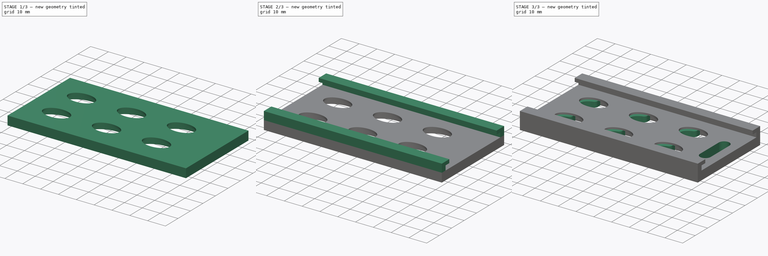
[diagram: build sequence overview — one tinted view per stage of 3, left to right]
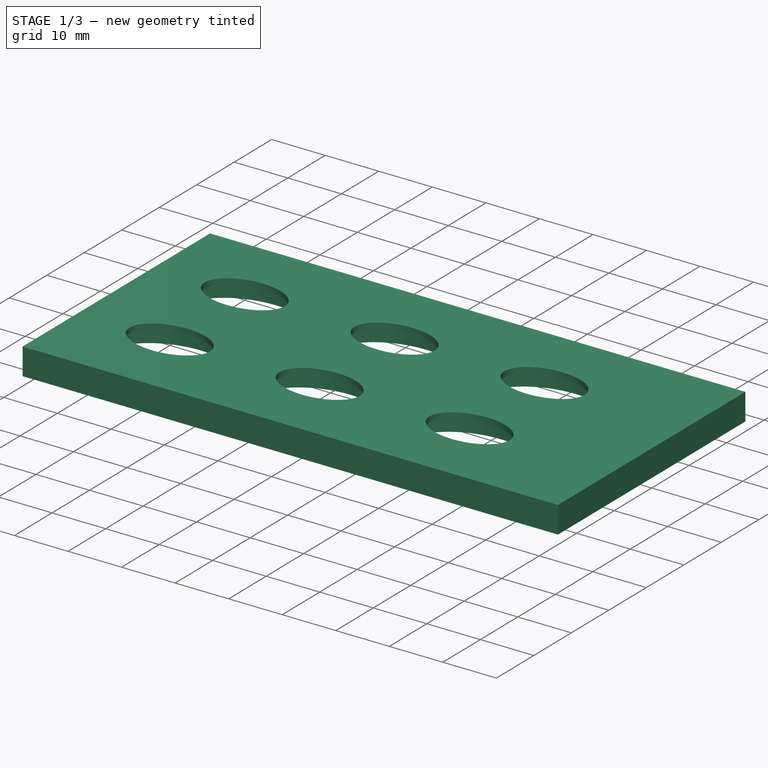
[diagram: stage 1 of 3 — iso view after this stage's code; geometry added in this stage tinted green]
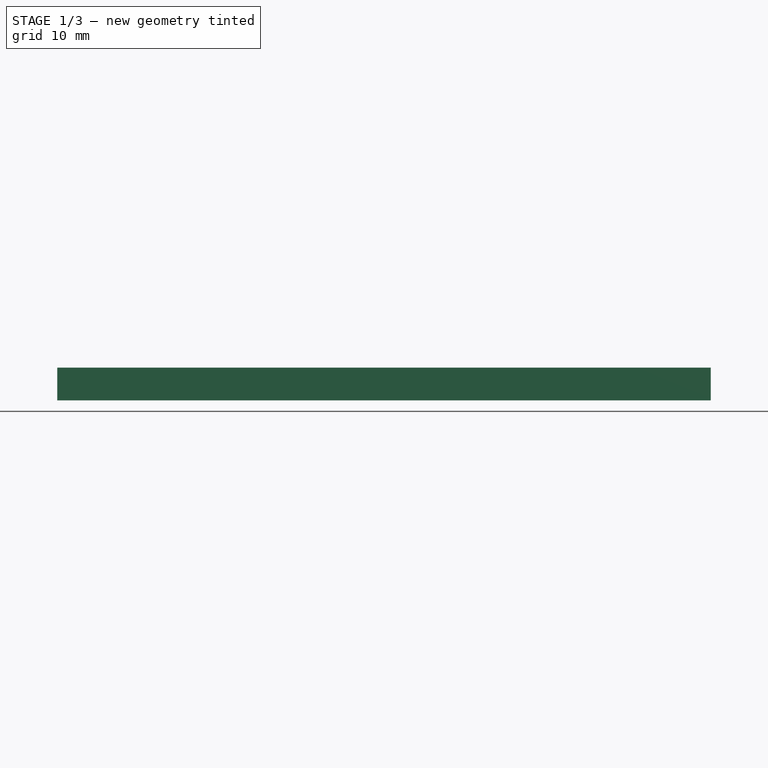
[diagram: stage 1 of 3 — front view after this stage's code; geometry added in this stage tinted green]
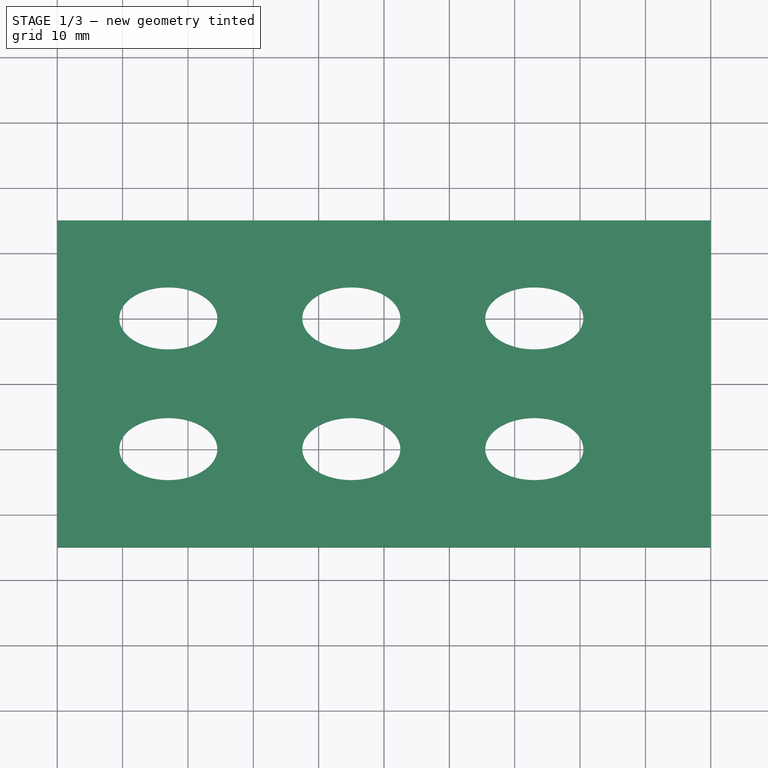
[diagram: stage 1 of 3 — top view after this stage's code; geometry added in this stage tinted green]
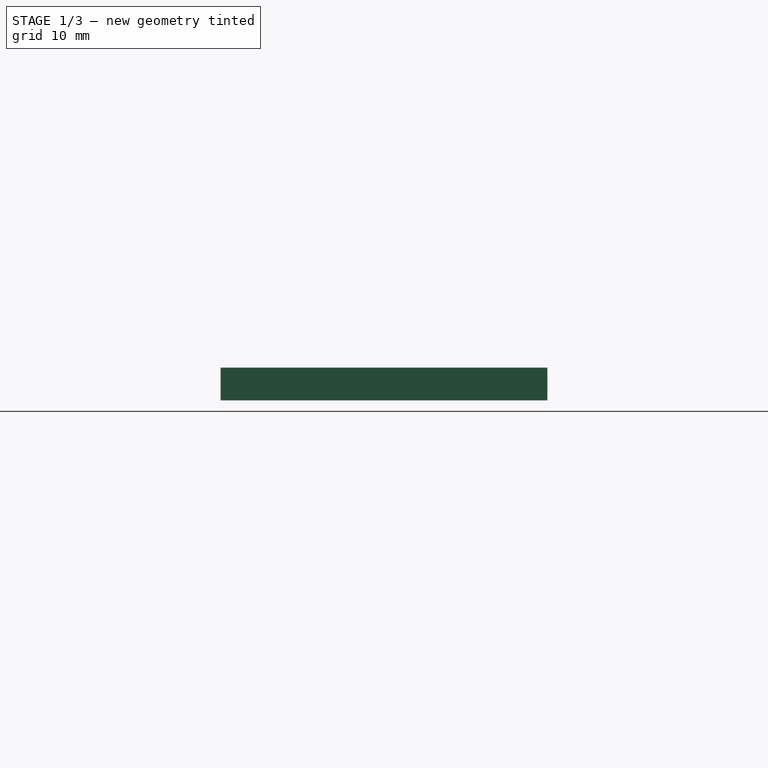
[diagram: stage 1 of 3 — right view after this stage's code; geometry added in this stage tinted green]
FCSTD DOCUMENT  (FreeCAD 0.21R33668 +26 (Git))
Label: bushing_jig_top2
License: All rights reserved
LicenseURL: https://en.wikipedia.org/wiki/All_rights_reserved
objects: Sketcher::SketchObject×6, PartDesign::Pad×3, PartDesign::Plane×3, PartDesign::Pocket×3, PartDesign::Mirrored×1, PartDesign::Fillet×1, PartDesign::Body×1
note: 25 computed .brp shape members not serialized (recipe doc carries the construction recipe); baked Part::Feature solids carry a one-line shape summary decoded from their .brp

FEATURE [Sketcher::SketchObject] Sketch
  FullyConstrained = true
  MapMode = 5
  Support = -> [XY_Plane]
  sketch-geometry (5):
    g0: LineSegment StartX=-50 StartY=-25 StartZ=0 EndX=-50 EndY=25 EndZ=0
    g1: LineSegment StartX=-50 StartY=25 StartZ=0 EndX=50 EndY=25 EndZ=0
    g2: LineSegment StartX=50 StartY=25 StartZ=0 EndX=50 EndY=-25 EndZ=0
    g3: LineSegment StartX=50 StartY=-25 StartZ=0 EndX=-50 EndY=-25 EndZ=0
    g4: GeomPoint X=0 Y=0 Z=0
  constraints (12):
    c: Coincident(g0,g1)
    c: Coincident(g1,g2)
    c: Coincident(g2,g3)
    c: Coincident(g3,g0)
    c: Horizontal(g1)
    c: Horizontal(g3)
    c: Vertical(g0)
    c: Vertical(g2)
    c: Symmetric(g1,g0,g4)
    c: Coincident(g4,g-1)
    c: DistanceX(g1,g1) = 100
    c: DistanceY(g2,g2) = 50
FEATURE [PartDesign::Pad] Pad
  Direction = (0,0,1)
  Length = 5
  Length2 = 10
  Profile = -> Sketch
  ReferenceAxis = -> Sketch [N_Axis]
  Reversed = true
  Type = 0
FEATURE [Sketcher::SketchObject] Sketch001
  FullyConstrained = true
  MapMode = 5
  Support = -> [XY_Plane]
  sketch-geometry (36):
    g0: Ellipse CenterX=-33 CenterY=10 CenterZ=0 NormalX=0 NormalY=0 NormalZ=1 MajorRadius=7.5 MinorRadius=4.75 AngleXU=0
    g1: LineSegment StartX=-25.5 StartY=10 StartZ=0 EndX=-40.5 EndY=10 EndZ=0
    g2: LineSegment StartX=-33 StartY=14.75 StartZ=0 EndX=-33 EndY=5.25 EndZ=0
    g3: GeomPoint X=-27.1959 Y=10 Z=0
    g4: GeomPoint X=-38.8041 Y=10 Z=0
    g5: Ellipse CenterX=-5 CenterY=10 CenterZ=0 NormalX=0 NormalY=0 NormalZ=1 MajorRadius=7.5 MinorRadius=4.75 AngleXU=0
    g6: LineSegment StartX=2.5 StartY=10 StartZ=0 EndX=-12.5 EndY=10 EndZ=0
    g7: LineSegment StartX=-5 StartY=14.75 StartZ=0 EndX=-5 EndY=5.25 EndZ=0
    g8: GeomPoint X=0.804093 Y=10 Z=0
    g9: GeomPoint X=-10.8041 Y=10 Z=0
    g10: LineSegment StartX=-33 StartY=10 StartZ=0 EndX=-5 EndY=10 EndZ=0
    g11: Ellipse CenterX=23 CenterY=10 CenterZ=0 NormalX=0 NormalY=0 NormalZ=1 MajorRadius=7.5 MinorRadius=4.75 AngleXU=0
    g12: LineSegment StartX=30.5 StartY=10 StartZ=0 EndX=15.5 EndY=10 EndZ=0
    g13: LineSegment StartX=23 StartY=14.75 StartZ=0 EndX=23 EndY=5.25 EndZ=0
    g14: GeomPoint X=28.8041 Y=10 Z=0
    g15: GeomPoint X=17.1959 Y=10 Z=0
    g16: LineSegment StartX=-5 StartY=10 StartZ=0 EndX=23 EndY=10 EndZ=0
    g17: Ellipse CenterX=-33 CenterY=-10 CenterZ=0 NormalX=0 NormalY=0 NormalZ=1 MajorRadius=7.5 MinorRadius=4.75 AngleXU=0
    g18: LineSegment StartX=-25.5 StartY=-10 StartZ=0 EndX=-40.5 EndY=-10 EndZ=0
    g19: LineSegment StartX=-33 StartY=-5.25 StartZ=0 EndX=-33 EndY=-14.75 EndZ=0
    g20: GeomPoint X=-27.1959 Y=-10 Z=0
    g21: GeomPoint X=-38.8041 Y=-10 Z=0
    g22: LineSegment StartX=-33 StartY=10 StartZ=0 EndX=-33 EndY=-10 EndZ=0
    g23: Ellipse CenterX=-5 CenterY=-10 CenterZ=0 NormalX=0 NormalY=0 NormalZ=1 MajorRadius=7.5 MinorRadius=4.75 AngleXU=0
    g24: LineSegment StartX=2.5 StartY=-10 StartZ=0 EndX=-12.5 EndY=-10 EndZ=0
    g25: LineSegment StartX=-5 StartY=-5.25 StartZ=0 EndX=-5 EndY=-14.75 EndZ=0
    g26: GeomPoint X=0.804093 Y=-10 Z=0
    g27: GeomPoint X=-10.8041 Y=-10 Z=0
    g28: LineSegment StartX=-33 StartY=-10 StartZ=0 EndX=-5 EndY=-10 EndZ=0
    g29: Ellipse CenterX=23 CenterY=-10 CenterZ=0 NormalX=0 NormalY=0 NormalZ=1 MajorRadius=7.5 MinorRadius=4.75 AngleXU=0
    g30: LineSegment StartX=30.5 StartY=-10 StartZ=0 EndX=15.5 EndY=-10 EndZ=0
    g31: LineSegment StartX=23 StartY=-5.25 StartZ=0 EndX=23 EndY=-14.75 EndZ=0
    g32: GeomPoint X=28.8041 Y=-10 Z=0
    g33: GeomPoint X=17.1959 Y=-10 Z=0
    g34: LineSegment StartX=-5 StartY=-10 StartZ=0 EndX=23 EndY=-10 EndZ=0
    g35: GeomPoint X=-5 Y=0 Z=0
  constraints (47):
    c: InternalAlignment(g1-g4 -> g0) x4
    c: Horizontal(g1)
    c: DistanceY(g2,g2) = 9.5
    c: DistanceX(g1,g1) = 15
    c: InternalAlignment(g6-g9 -> g5) x4
    c: Horizontal(g6)
    c: Equal(g2,g7) = 9.5
    c: Equal(g1,g6) = 13
    c: Coincident(g0,g10)
    c: Coincident(g5,g10)
    c: Distance(g10) = 28
    c: Angle(g10) = 0
    c: InternalAlignment(g12-g15 -> g11) x4
    c: Horizontal(g12)
    c: Equal(g2,g13) = 9.5
    c: Equal(g1,g12) = 13
    c: Coincident(g5,g16)
    c: Coincident(g11,g16)
    c: Equal(g10,g16)
    c: Parallel(g16,g10)
    c: InternalAlignment(g18-g21 -> g17) x4
    c: Horizontal(g18)
    c: Equal(g2,g19) = 9.5
    c: Equal(g1,g18) = 13
    c: Coincident(g0,g22)
    c: Coincident(g17,g22)
    c: Distance(g22) = 20
    c: Perpendicular(g22,g10)
    c: InternalAlignment(g24-g27 -> g23) x4
    c: Horizontal(g24)
    c: Equal(g2,g25) = 9.5
    c: Equal(g1,g24) = 13
    c: Coincident(g17,g28)
    c: Coincident(g23,g28)
    c: Equal(g10,g28)
    c: Parallel(g28,g10)
    c: InternalAlignment(g30-g33 -> g29) x4
    c: Horizontal(g30)
    c: Equal(g2,g31) = 9.5
    c: Equal(g1,g30) = 13
    c: Coincident(g23,g34)
    c: Coincident(g29,g34)
    c: Equal(g10,g34)
    c: Parallel(g34,g10)
    c: PointOnObject(g35,g-1)
    c: Symmetric(g5,g23,g35)
    c: DistanceX(g5,g-1) = 5
FEATURE [PartDesign::Plane] DatumPlane
  AttachmentOffset = pos=(0,0,-5) rot=(0,0,1;0rad)
  Length = 60
  MapMode = 5
  Placement = pos=(0,0,-5) rot=(0,0,1;0rad)
  ResizeMode = 0
  Support = -> [XY_Plane]
  Width = 60
FEATURE [Sketcher::SketchObject] Sketch003
  FullyConstrained = true
  MapMode = 5
  Placement = pos=(0,0,-5) rot=(0,0,1;0rad)
  Support = -> [DatumPlane]
  sketch-geometry (36):
    g0: Ellipse CenterX=-33 CenterY=10 CenterZ=0 NormalX=0 NormalY=0 NormalZ=1 MajorRadius=11.5 MinorRadius=8.25 AngleXU=0
    g1: LineSegment StartX=-21.5 StartY=10 StartZ=0 EndX=-44.5 EndY=10 EndZ=0
    g2: LineSegment StartX=-33 StartY=18.25 StartZ=0 EndX=-33 EndY=1.75 EndZ=0
    g3: GeomPoint X=-24.9883 Y=10 Z=0
    g4: GeomPoint X=-41.0117 Y=10 Z=0
    g5: Ellipse CenterX=-5 CenterY=10 CenterZ=0 NormalX=0 NormalY=0 NormalZ=1 MajorRadius=11.5 MinorRadius=8.25 AngleXU=0
    g6: LineSegment StartX=6.5 StartY=10 StartZ=0 EndX=-16.5 EndY=10 EndZ=0
    g7: LineSegment StartX=-5 StartY=18.25 StartZ=0 EndX=-5 EndY=1.75 EndZ=0
    g8: GeomPoint X=3.01171 Y=10 Z=0
    g9: GeomPoint X=-13.0117 Y=10 Z=0
    g10: LineSegment StartX=-33 StartY=10 StartZ=0 EndX=-5 EndY=10 EndZ=0
    g11: Ellipse CenterX=23 CenterY=10 CenterZ=0 NormalX=0 NormalY=0 NormalZ=1 MajorRadius=11.5 MinorRadius=8.25 AngleXU=0
    g12: LineSegment StartX=34.5 StartY=10 StartZ=0 EndX=11.5 EndY=10 EndZ=0
    g13: LineSegment StartX=23 StartY=18.25 StartZ=0 EndX=23 EndY=1.75 EndZ=0
    g14: GeomPoint X=31.0117 Y=10 Z=0
    g15: GeomPoint X=14.9883 Y=10 Z=0
    g16: LineSegment StartX=-5 StartY=10 StartZ=0 EndX=23 EndY=10 EndZ=0
    g17: Ellipse CenterX=-33 CenterY=-10 CenterZ=0 NormalX=0 NormalY=0 NormalZ=1 MajorRadius=11.5 MinorRadius=8.25 AngleXU=0
    g18: LineSegment StartX=-21.5 StartY=-10 StartZ=0 EndX=-44.5 EndY=-10 EndZ=0
    g19: LineSegment StartX=-33 StartY=-1.75 StartZ=0 EndX=-33 EndY=-18.25 EndZ=0
    g20: GeomPoint X=-24.9883 Y=-10 Z=0
    g21: GeomPoint X=-41.0117 Y=-10 Z=0
    g22: LineSegment StartX=-33 StartY=10 StartZ=0 EndX=-33 EndY=-10 EndZ=0
    g23: Ellipse CenterX=-5 CenterY=-10 CenterZ=0 NormalX=0 NormalY=0 NormalZ=1 MajorRadius=11.5 MinorRadius=8.25 AngleXU=0
    g24: LineSegment StartX=6.5 StartY=-10 StartZ=0 EndX=-16.5 EndY=-10 EndZ=0
    g25: LineSegment StartX=-5 StartY=-1.75 StartZ=0 EndX=-5 EndY=-18.25 EndZ=0
    g26: GeomPoint X=3.01171 Y=-10 Z=0
    g27: GeomPoint X=-13.0117 Y=-10 Z=0
    g28: LineSegment StartX=-33 StartY=-10 StartZ=0 EndX=-5 EndY=-10 EndZ=0
    g29: Ellipse CenterX=23 CenterY=-10 CenterZ=0 NormalX=0 NormalY=0 NormalZ=1 MajorRadius=11.5 MinorRadius=8.25 AngleXU=0
    g30: LineSegment StartX=34.5 StartY=-10 StartZ=0 EndX=11.5 EndY=-10 EndZ=0
    g31: LineSegment StartX=23 StartY=-1.75 StartZ=0 EndX=23 EndY=-18.25 EndZ=0
    g32: GeomPoint X=31.0117 Y=-10 Z=0
    g33: GeomPoint X=14.9883 Y=-10 Z=0
    g34: LineSegment StartX=-5 StartY=-10 StartZ=0 EndX=23 EndY=-10 EndZ=0
    g35: GeomPoint X=-5 Y=0 Z=0
  constraints (47):
    c: InternalAlignment(g1-g4 -> g0) x4
    c: Horizontal(g1)
    c: DistanceX(g1,g1) = 23
    c: DistanceY(g2,g2) = 16.5
    c: InternalAlignment(g6-g9 -> g5) x4
    c: Horizontal(g6)
    c: Equal(g1,g6) = 21
    c: Equal(g2,g7) = 16.5
    c: Coincident(g0,g10)
    c: Coincident(g5,g10)
    c: Distance(g10) = 28
    c: Angle(g10) = 0
    c: InternalAlignment(g12-g15 -> g11) x4
    c: Horizontal(g12)
    c: Equal(g1,g12) = 21
    c: Equal(g2,g13) = 16.5
    c: Coincident(g5,g16)
    c: Coincident(g11,g16)
    c: Equal(g10,g16)
    c: Parallel(g16,g10)
    c: InternalAlignment(g18-g21 -> g17) x4
    c: Horizontal(g18)
    c: Equal(g1,g18) = 21
    c: Equal(g2,g19) = 16.5
    c: Coincident(g0,g22)
    c: Coincident(g17,g22)
    c: Distance(g22) = 20
    c: Perpendicular(g22,g10)
    c: InternalAlignment(g24-g27 -> g23) x4
    c: Horizontal(g24)
    c: Equal(g1,g24) = 21
    c: Equal(g2,g25) = 16.5
    c: Coincident(g17,g28)
    c: Coincident(g23,g28)
    c: Equal(g10,g28)
    c: Parallel(g28,g10)
    c: InternalAlignment(g30-g33 -> g29) x4
    c: Horizontal(g30)
    c: Equal(g1,g30) = 21
    c: Equal(g2,g31) = 16.5
    c: Coincident(g23,g34)
    c: Coincident(g29,g34)
    c: Equal(g10,g34)
    c: Parallel(g34,g10)
    c: PointOnObject(g35,g-1)
    c: Symmetric(g5,g23,g35)
    c: DistanceX(g5,g-1) = 5
FEATURE [Sketcher::SketchObject] Sketch005
  FullyConstrained = true
  MapMode = 5
  Placement = pos=(0,0,0) rot=(0.57735,0.57735,0.57735;2.0944rad)
  Support = -> [YZ_Plane]
  sketch-geometry (6):
    g0: LineSegment StartX=25 StartY=0 StartZ=0 EndX=25 EndY=4.6 EndZ=0
    g1: LineSegment StartX=25 StartY=4.6 StartZ=0 EndX=19 EndY=4.6 EndZ=0
    g2: LineSegment StartX=19 StartY=4.6 StartZ=0 EndX=19 EndY=2.6 EndZ=0
    g3: LineSegment StartX=19 StartY=2.6 StartZ=0 EndX=22 EndY=2.6 EndZ=0
    g4: LineSegment StartX=22 StartY=2.6 StartZ=0 EndX=22 EndY=0 EndZ=0
    g5: LineSegment StartX=22 StartY=0 StartZ=0 EndX=25 EndY=0 EndZ=0
  constraints (19):
    c: PointOnObject(g0,g-1)
    c: Vertical(g0)
    c: Horizontal(g1)
    c: Coincident(g2,g1)
    c: Vertical(g2)
    c: Horizontal(g3)
    c: PointOnObject(g4,g-1)
    c: Coincident(g5,g4)
    c: Coincident(g5,g0)
    c: Vertical(g4)
    c: Coincident(g3,g4)
    c: Coincident(g1,g0)
    c: DistanceY(g2,g2) = 2
    c: Coincident(g3,g2)
    c: DistanceX(g5,g5) = 3
    c: DistanceX(g1,g1) = 6
    c: DistanceX(g-1,g0) = 25
    c: DistanceY(g4,g4) = 2.6
    c: DistanceY(g0,g0) = 4.6
FEATURE [PartDesign::Pocket] Pocket
  BaseFeature = -> Pad
  Direction = (0,0,-1)
  Length = 16
  Length2 = 5
  Profile = -> Sketch001
  ReferenceAxis = -> Sketch001 [N_Axis]
  Type = 0
FEATURE [PartDesign::Pocket] Pocket001
  BaseFeature = -> Pocket
  Direction = (0,0,-1)
  Length = 4
  Length2 = 5
  Profile = -> Sketch003
  ReferenceAxis = -> Sketch003 [N_Axis]
  Reversed = true
  Type = 0
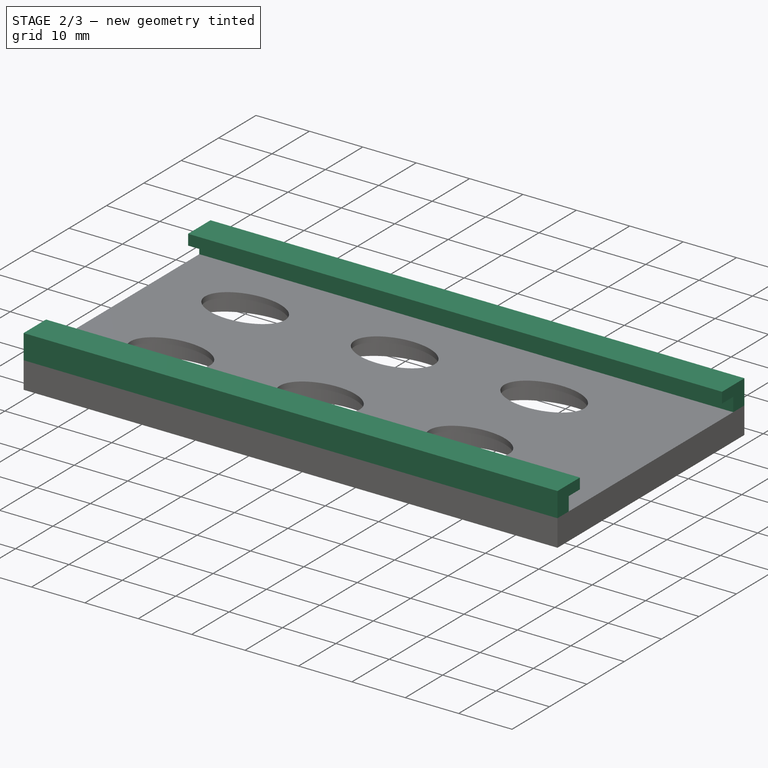
[diagram: stage 2 of 3 — iso view after this stage's code; geometry added in this stage tinted green]
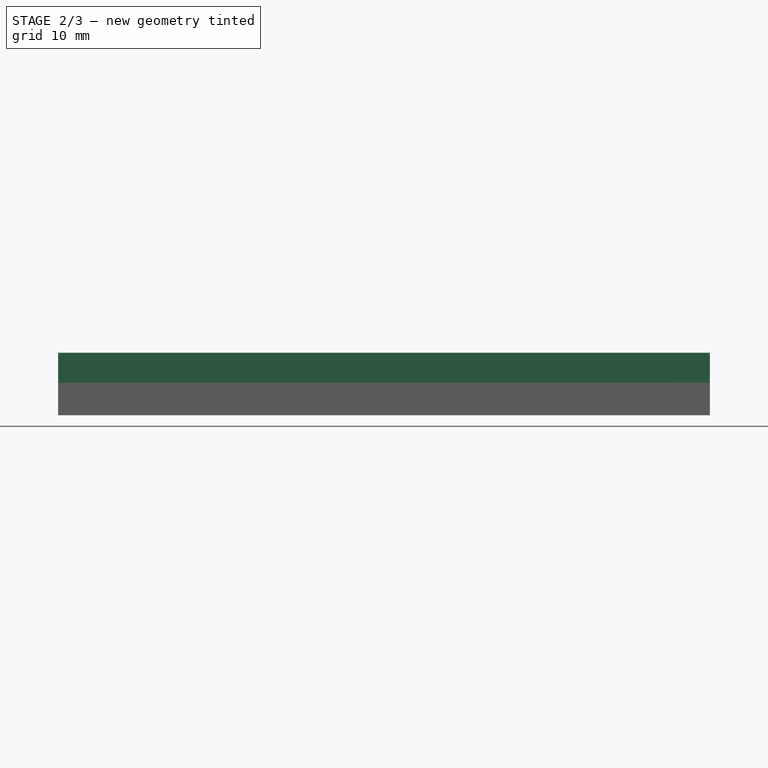
[diagram: stage 2 of 3 — front view after this stage's code; geometry added in this stage tinted green]
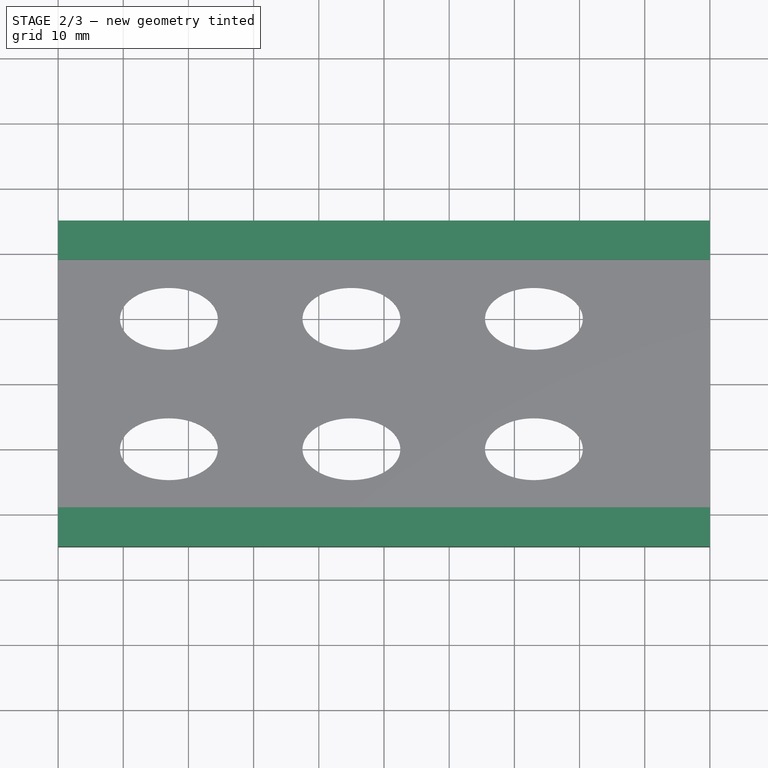
[diagram: stage 2 of 3 — top view after this stage's code; geometry added in this stage tinted green]
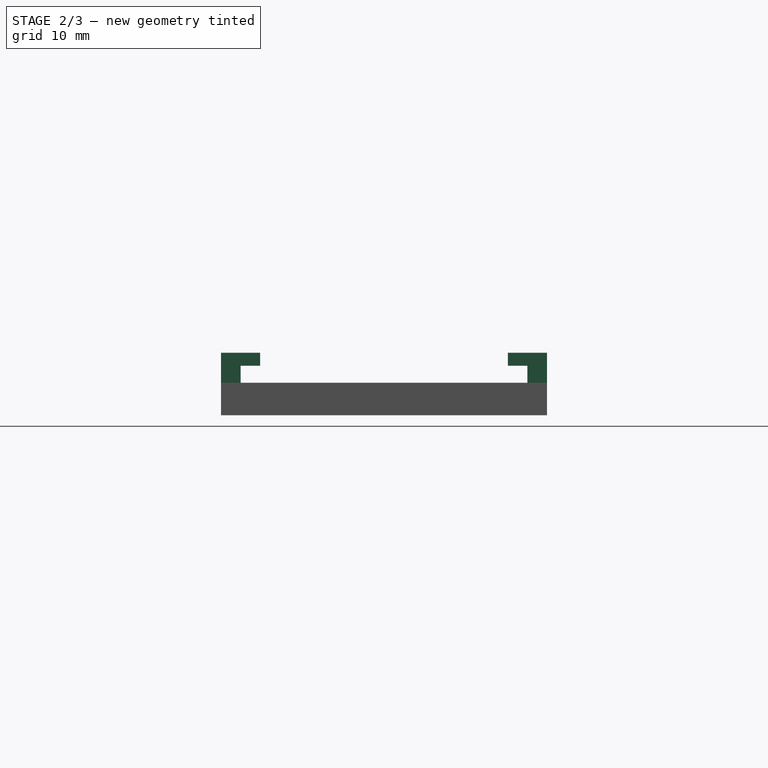
[diagram: stage 2 of 3 — right view after this stage's code; geometry added in this stage tinted green]
FEATURE [PartDesign::Pad] Pad001
  BaseFeature = -> Pocket001
  Direction = (1,-2e-16,3e-16)
  Length = 100
  Length2 = 10
  Midplane = true
  Profile = -> Sketch005
  ReferenceAxis = -> Sketch005 [N_Axis]
  Type = 0
FEATURE [PartDesign::Mirrored] Mirrored
  BaseFeature = -> Pad001
  MirrorPlane = -> Sketch005 [V_Axis]
  Originals = -> [Pad001]
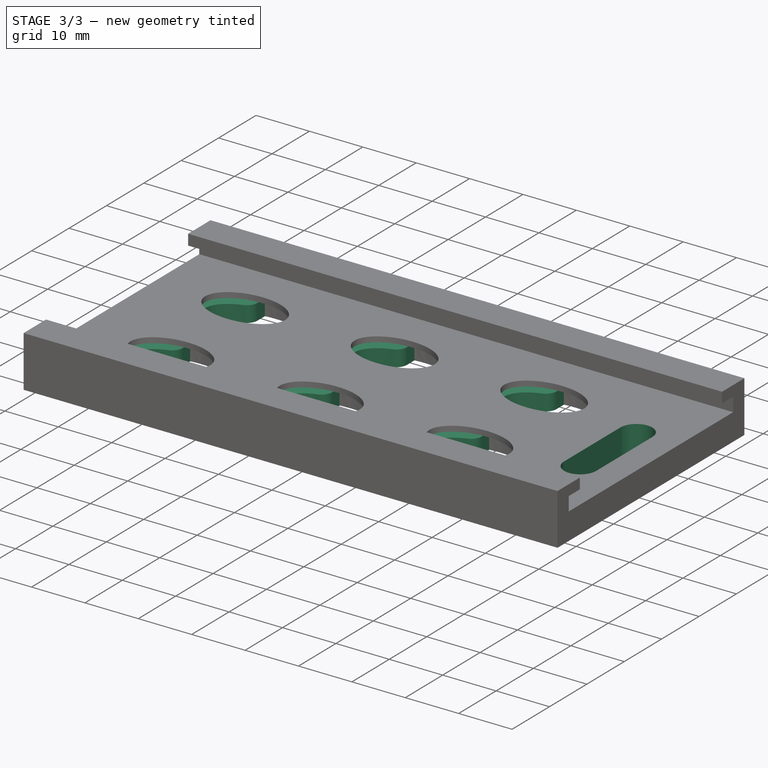
[diagram: stage 3 of 3 — iso view after this stage's code; geometry added in this stage tinted green]
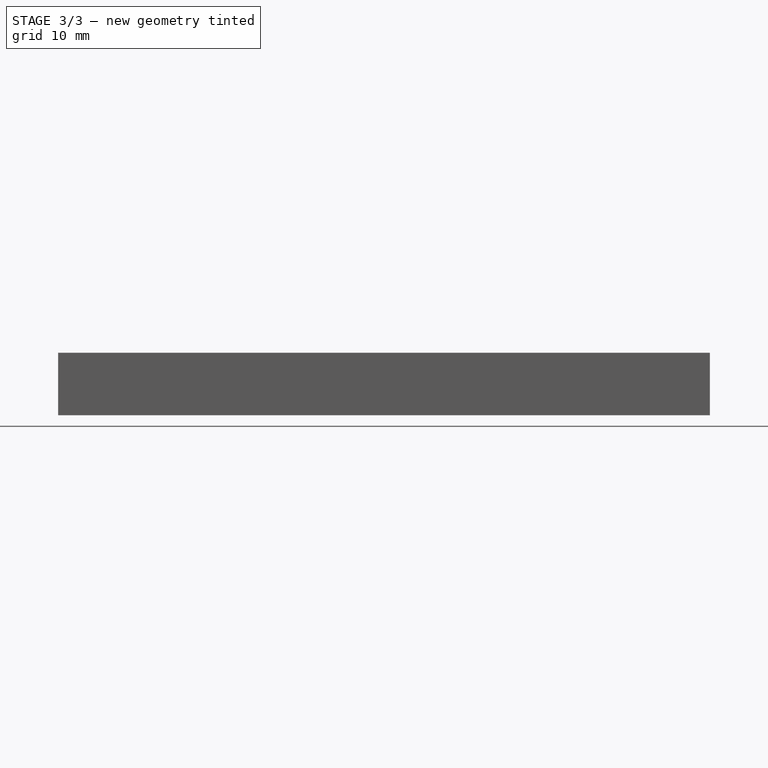
[diagram: stage 3 of 3 — front view after this stage's code; geometry added in this stage tinted green]
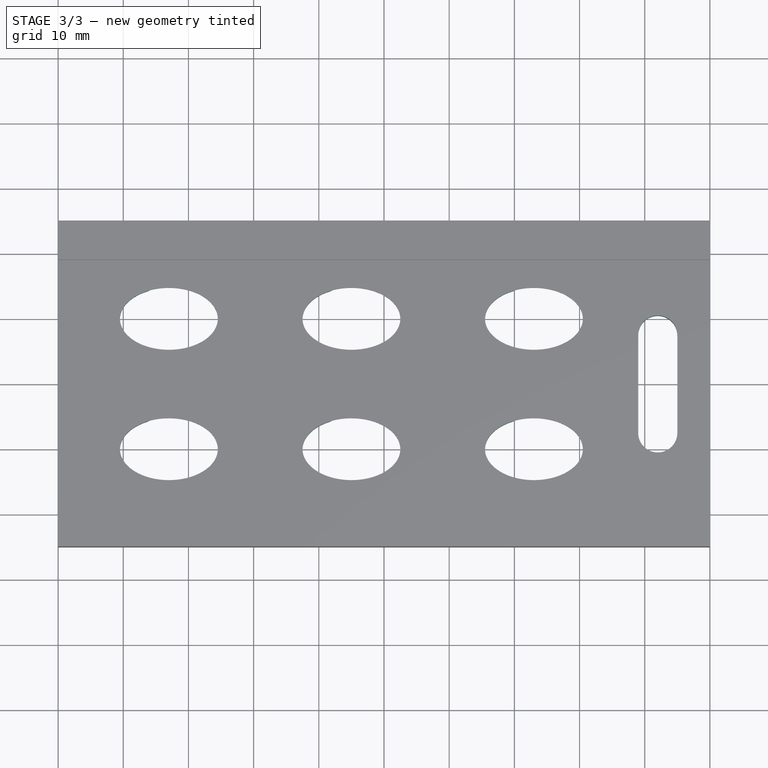
[diagram: stage 3 of 3 — top view after this stage's code; geometry added in this stage tinted green]
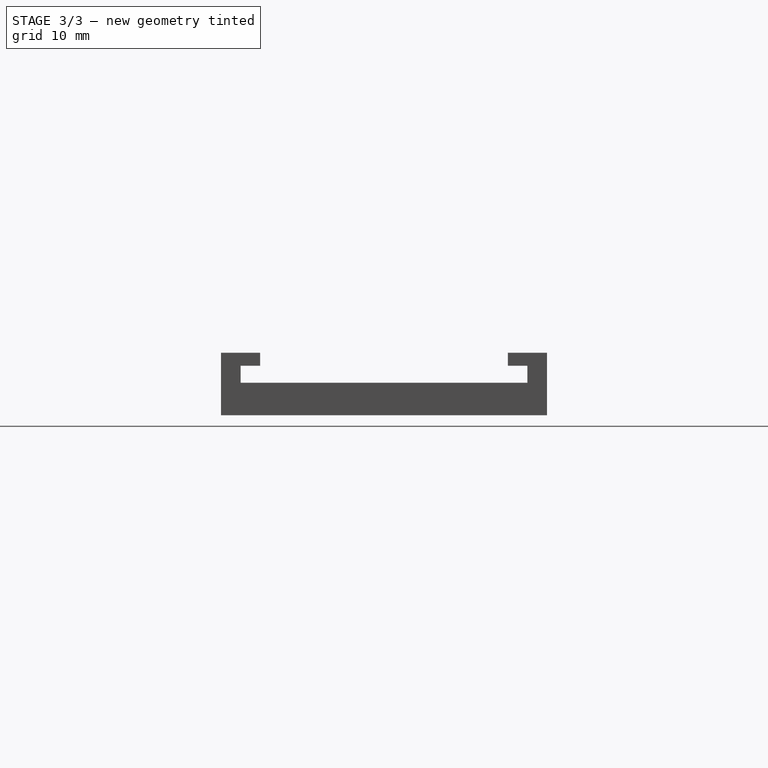
[diagram: stage 3 of 3 — right view after this stage's code; geometry added in this stage tinted green]
FEATURE [Sketcher::SketchObject] Sketch006
  FullyConstrained = true
  MapMode = 5
  Support = -> [XY_Plane]
  sketch-geometry (5):
    g0: ArcOfCircle CenterX=42 CenterY=7.5 CenterZ=0 NormalX=0 NormalY=0 NormalZ=1 AngleXU=0 Radius=3 StartAngle=1e-16 EndAngle=3.14159
    g1: ArcOfCircle CenterX=42 CenterY=-7.5 CenterZ=0 NormalX=0 NormalY=0 NormalZ=1 AngleXU=0 Radius=3 StartAngle=3.14159 EndAngle=6.28319
    g2: LineSegment StartX=39 StartY=7.5 StartZ=0 EndX=39 EndY=-7.5 EndZ=0
    g3: LineSegment StartX=45 StartY=-7.5 StartZ=0 EndX=45 EndY=7.5 EndZ=0
    g4: GeomPoint X=42 Y=0 Z=0
  constraints (11):
    c: Tangent(g0,g2) = -1.5708
    c: Tangent(g2,g1) = -1.5708
    c: Tangent(g1,g3) = -1.5708
    c: Tangent(g3,g0) = -1.5708
    c: Equal(g0,g1)
    c: Vertical(g2)
    c: DistanceY(g1,g0) = 15
    c: Radius(g0) = 3
    c: DistanceX(g-1,g1) = 42
    c: PointOnObject(g4,g-1)
    c: Symmetric(g0,g1,g4)
FEATURE [PartDesign::Pocket] Pocket002
  BaseFeature = -> Mirrored
  Direction = (0,0,-1)
  Length = 5
  Length2 = 5
  Profile = -> Sketch006
  ReferenceAxis = -> Sketch006 [N_Axis]
  Type = 1
FEATURE [PartDesign::Plane] DatumPlane001
  AttachmentOffset = pos=(0,0,-2) rot=(0,0,1;0rad)
  Length = 60
  MapMode = 5
  Placement = pos=(0,0,-2) rot=(0,0,1;0rad)
  ResizeMode = 0
  Support = -> [XY_Plane]
  Width = 60
FEATURE [Sketcher::SketchObject] Sketch007
  FullyConstrained = true
  MapMode = 5
  Placement = pos=(0,0,-2) rot=(0,0,1;0rad)
  Support = -> [DatumPlane001]
  sketch-geometry (78):
    g0: ArcOfEllipse CenterX=-33 CenterY=10 CenterZ=0 NormalX=0 NormalY=0 NormalZ=1 MajorRadius=11.5 MinorRadius=8.25 AngleXU=0 StartAngle=1.7456 EndAngle=4.53759
    g1: LineSegment StartX=-21.5 StartY=10 StartZ=0 EndX=-44.5 EndY=10 EndZ=0
    g2: LineSegment StartX=-33 StartY=18.25 StartZ=0 EndX=-33 EndY=1.75 EndZ=0
    g3: GeomPoint X=-24.9883 Y=10 Z=0
    g4: GeomPoint X=-41.0117 Y=10 Z=0
    g5: ArcOfEllipse CenterX=-33 CenterY=10 CenterZ=0 NormalX=0 NormalY=0 NormalZ=1 MajorRadius=7.5 MinorRadius=4.75 AngleXU=0 StartAngle=1.84073 EndAngle=4.44246
    g6: LineSegment StartX=-25.5 StartY=10 StartZ=0 EndX=-40.5 EndY=10 EndZ=0
    g7: LineSegment StartX=-33 StartY=14.75 StartZ=0 EndX=-33 EndY=5.25 EndZ=0
    g8: GeomPoint X=-27.1959 Y=10 Z=0
    g9: GeomPoint X=-38.8041 Y=10 Z=0
    g10: LineSegment StartX=-35 StartY=18.1243 StartZ=0 EndX=-35 EndY=14.578 EndZ=0
    g11: LineSegment StartX=-35 StartY=5.422 StartZ=0 EndX=-35 EndY=1.87572 EndZ=0
    g12: ArcOfEllipse CenterX=-5 CenterY=10 CenterZ=0 NormalX=0 NormalY=0 NormalZ=1 MajorRadius=11.5 MinorRadius=8.25 AngleXU=0 StartAngle=1.7456 EndAngle=4.53759
    g13: LineSegment StartX=6.5 StartY=10 StartZ=0 EndX=-16.5 EndY=10 EndZ=0
    g14: LineSegment StartX=-5 StartY=18.25 StartZ=0 EndX=-5 EndY=1.75 EndZ=0
    g15: GeomPoint X=3.01171 Y=10 Z=0
    g16: GeomPoint X=-13.0117 Y=10 Z=0
    g17: ArcOfEllipse CenterX=-5 CenterY=10 CenterZ=0 NormalX=0 NormalY=0 NormalZ=1 MajorRadius=7.5 MinorRadius=4.75 AngleXU=-3e-16 StartAngle=1.84073 EndAngle=4.44246
    g18: LineSegment StartX=2.5 StartY=10 StartZ=0 EndX=-12.5 EndY=10 EndZ=0
    g19: LineSegment StartX=-5 StartY=14.75 StartZ=0 EndX=-5 EndY=5.25 EndZ=0
    g20: GeomPoint X=0.804093 Y=10 Z=0
    g21: GeomPoint X=-10.8041 Y=10 Z=0
    g22: LineSegment StartX=-7 StartY=18.1243 StartZ=0 EndX=-7 EndY=14.578 EndZ=0
    g23: LineSegment StartX=-7 StartY=5.422 StartZ=0 EndX=-7 EndY=1.87572 EndZ=0
    g24: LineSegment StartX=-35 StartY=18.1243 StartZ=0 EndX=-7 EndY=18.1243 EndZ=0
    g25: ArcOfEllipse CenterX=23 CenterY=10 CenterZ=0 NormalX=0 NormalY=0 NormalZ=1 MajorRadius=11.5 MinorRadius=8.25 AngleXU=0 StartAngle=1.7456 EndAngle=4.53759
    g26: LineSegment StartX=34.5 StartY=10 StartZ=0 EndX=11.5 EndY=10 EndZ=0
    g27: LineSegment StartX=23 StartY=18.25 StartZ=0 EndX=23 EndY=1.75 EndZ=0
    g28: GeomPoint X=31.0117 Y=10 Z=0
    g29: GeomPoint X=14.9883 Y=10 Z=0
    g30: ArcOfEllipse CenterX=23 CenterY=10 CenterZ=0 NormalX=0 NormalY=0 NormalZ=1 MajorRadius=7.5 MinorRadius=4.75 AngleXU=0 StartAngle=1.84073 EndAngle=4.44246
    g31: LineSegment StartX=30.5 StartY=10 StartZ=0 EndX=15.5 EndY=10 EndZ=0
    g32: LineSegment StartX=23 StartY=14.75 StartZ=0 EndX=23 EndY=5.25 EndZ=0
    g33: GeomPoint X=28.8041 Y=10 Z=0
    g34: GeomPoint X=17.1959 Y=10 Z=0
    g35: LineSegment StartX=21 StartY=18.1243 StartZ=0 EndX=21 EndY=14.578 EndZ=0
    g36: LineSegment StartX=21 StartY=5.422 StartZ=0 EndX=21 EndY=1.87572 EndZ=0
    g37: LineSegment StartX=-7 StartY=18.1243 StartZ=0 EndX=21 EndY=18.1243 EndZ=0
    g38: ArcOfEllipse CenterX=-33 CenterY=-10 CenterZ=0 NormalX=0 NormalY=0 NormalZ=1 MajorRadius=11.5 MinorRadius=8.25 AngleXU=0 StartAngle=1.7456 EndAngle=4.53759
    g39: LineSegment StartX=-21.5 StartY=-10 StartZ=0 EndX=-44.5 EndY=-10 EndZ=0
    g40: LineSegment StartX=-33 StartY=-1.75 StartZ=0 EndX=-33 EndY=-18.25 EndZ=0
    g41: GeomPoint X=-24.9883 Y=-10 Z=0
    g42: GeomPoint X=-41.0117 Y=-10 Z=0
    g43: ArcOfEllipse CenterX=-33 CenterY=-10 CenterZ=0 NormalX=0 NormalY=0 NormalZ=1 MajorRadius=7.5 MinorRadius=4.75 AngleXU=0 StartAngle=1.84073 EndAngle=4.44246
    g44: LineSegment StartX=-25.5 StartY=-10 StartZ=0 EndX=-40.5 EndY=-10 EndZ=0
    g45: LineSegment StartX=-33 StartY=-5.25 StartZ=0 EndX=-33 EndY=-14.75 EndZ=0
    g46: GeomPoint X=-27.1959 Y=-10 Z=0
    g47: GeomPoint X=-38.8041 Y=-10 Z=0
    g48: LineSegment StartX=-35 StartY=-1.87572 StartZ=0 EndX=-35 EndY=-5.422 EndZ=0
    g49: LineSegment StartX=-35 StartY=-14.578 StartZ=0 EndX=-35 EndY=-18.1243 EndZ=0
    g50: LineSegment StartX=-35 StartY=18.1243 StartZ=0 EndX=-35 EndY=-1.87572 EndZ=0
    g51: ArcOfEllipse CenterX=-5 CenterY=-10 CenterZ=0 NormalX=0 NormalY=0 NormalZ=1 MajorRadius=11.5 MinorRadius=8.25 AngleXU=0 StartAngle=1.7456 EndAngle=4.53759
    g52: LineSegment StartX=6.5 StartY=-10 StartZ=0 EndX=-16.5 EndY=-10 EndZ=0
    g53: LineSegment StartX=-5 StartY=-1.75 StartZ=0 EndX=-5 EndY=-18.25 EndZ=0
    g54: GeomPoint X=3.01171 Y=-10 Z=0
    g55: GeomPoint X=-13.0117 Y=-10 Z=0
    g56: ArcOfEllipse CenterX=-5 CenterY=-10 CenterZ=0 NormalX=0 NormalY=0 NormalZ=1 MajorRadius=7.5 MinorRadius=4.75 AngleXU=0 StartAngle=1.84073 EndAngle=4.44246
    g57: LineSegment StartX=2.5 StartY=-10 StartZ=0 EndX=-12.5 EndY=-10 EndZ=0
    g58: LineSegment StartX=-5 StartY=-5.25 StartZ=0 EndX=-5 EndY=-14.75 EndZ=0
    g59: GeomPoint X=0.804093 Y=-10 Z=0
    g60: GeomPoint X=-10.8041 Y=-10 Z=0
    g61: LineSegment StartX=-7 StartY=-1.87572 StartZ=0 EndX=-7 EndY=-5.422 EndZ=0
    g62: LineSegment StartX=-7 StartY=-14.578 StartZ=0 EndX=-7 EndY=-18.1243 EndZ=0
    g63: LineSegment StartX=-35 StartY=-1.87572 StartZ=0 EndX=-7 EndY=-1.87572 EndZ=0
    g64: ArcOfEllipse CenterX=23 CenterY=-10 CenterZ=0 NormalX=0 NormalY=0 NormalZ=1 MajorRadius=11.5 MinorRadius=8.25 AngleXU=0 StartAngle=1.7456 EndAngle=4.53759
    g65: LineSegment StartX=34.5 StartY=-10 StartZ=0 EndX=11.5 EndY=-10 EndZ=0
    g66: LineSegment StartX=23 StartY=-1.75 StartZ=0 EndX=23 EndY=-18.25 EndZ=0
    g67: GeomPoint X=31.0117 Y=-10 Z=0
    g68: GeomPoint X=14.9883 Y=-10 Z=0
    g69: ArcOfEllipse CenterX=23 CenterY=-10 CenterZ=0 NormalX=0 NormalY=0 NormalZ=1 MajorRadius=7.5 MinorRadius=4.75 AngleXU=0 StartAngle=1.84073 EndAngle=4.44246
    g70: LineSegment StartX=30.5 StartY=-10 StartZ=0 EndX=15.5 EndY=-10 EndZ=0
    g71: LineSegment StartX=23 StartY=-5.25 StartZ=0 EndX=23 EndY=-14.75 EndZ=0
    g72: GeomPoint X=28.8041 Y=-10 Z=0
    g73: GeomPoint X=17.1959 Y=-10 Z=0
    g74: LineSegment StartX=21 StartY=-1.87572 StartZ=0 EndX=21 EndY=-5.422 EndZ=0
    g75: LineSegment StartX=21 StartY=-14.578 StartZ=0 EndX=21 EndY=-18.1243 EndZ=0
    g76: LineSegment StartX=-7 StartY=-1.87572 StartZ=0 EndX=21 EndY=-1.87572 EndZ=0
    g77: GeomPoint X=-7 Y=0 Z=0
  constraints (125):
    c: InternalAlignment(g1-g4 -> g0) x4
    c: Horizontal(g1)
    c: DistanceY(g2,g2) = 16.5
    c: DistanceX(g1,g1) = 23
    c: InternalAlignment(g6-g9 -> g5) x4
    c: Coincident(g5,g0)
    c: DistanceX(g6,g6) = 15
    c: DistanceY(g7,g7) = 9.5
    c: Vertical(g10)
    c: DistanceX(g11,g2) = 2
    c: Coincident(g0,g10)
    c: Coincident(g0,g11)
    c: Coincident(g11,g5)
    c: Coincident(g10,g5)
    c: Vertical(g11)
    c: Vertical(g5,g5)
    c: Horizontal(g6)
    c: InternalAlignment(g13-g16 -> g12) x4
    c: Horizontal(g13)
    c: Equal(g2,g14) = 16.5
    c: Equal(g1,g13) = 23
    c: InternalAlignment(g18-g21 -> g17) x4
    c: Coincident(g17,g12)
    c: Equal(g6,g18) = 15
    c: Equal(g7,g19) = 9.5
    c: Vertical(g22)
    c: DistanceX(g23,g14) = 2
    c: Coincident(g12,g22)
    c: Coincident(g12,g23)
    c: Coincident(g23,g17)
    c: Coincident(g22,g17)
    c: Vertical(g23)
    c: Vertical(g17,g17)
    c: Horizontal(g18)
    c: Coincident(g0,g24)
    c: Coincident(g12,g24)
    c: Distance(g24) = 28
    c: Angle(g24) = 0
    c: InternalAlignment(g26-g29 -> g25) x4
    c: Horizontal(g26)
    c: Equal(g2,g27) = 16.5
    c: Equal(g1,g26) = 23
    c: InternalAlignment(g31-g34 -> g30) x4
    c: Coincident(g30,g25)
    c: Equal(g6,g31) = 15
    c: Equal(g7,g32) = 9.5
    c: Vertical(g35)
    c: DistanceX(g36,g27) = 2
    c: Coincident(g25,g35)
    c: Coincident(g25,g36)
    c: Coincident(g36,g30)
    c: Coincident(g35,g30)
    c: Vertical(g36)
    c: Vertical(g30,g30)
    c: Horizontal(g31)
    c: Coincident(g12,g37)
    c: Coincident(g25,g37)
    c: Equal(g24,g37)
    c: Parallel(g37,g24)
    c: InternalAlignment(g39-g42 -> g38) x4
    c: Horizontal(g39)
    c: Equal(g2,g40) = 16.5
    c: Equal(g1,g39) = 23
    c: InternalAlignment(g44-g47 -> g43) x4
    c: Coincident(g43,g38)
    c: Equal(g6,g44) = 15
    c: Equal(g7,g45) = 9.5
    c: Vertical(g48)
    c: DistanceX(g49,g40) = 2
    c: Coincident(g38,g48)
    c: Coincident(g38,g49)
    c: Coincident(g49,g43)
    c: Coincident(g48,g43)
    c: Vertical(g49)
    c: Vertical(g43,g43)
    c: Horizontal(g44)
    c: Coincident(g0,g50)
    c: Coincident(g38,g50)
    c: Distance(g50) = 20
    c: Perpendicular(g50,g24)
    c: InternalAlignment(g52-g55 -> g51) x4
    c: Horizontal(g52)
    c: Equal(g2,g53) = 16.5
    c: Equal(g1,g52) = 23
    c: InternalAlignment(g57-g60 -> g56) x4
    c: Coincident(g56,g51)
    c: Equal(g6,g57) = 15
    c: Equal(g7,g58) = 9.5
    c: Vertical(g61)
    c: DistanceX(g62,g53) = 2
    c: Coincident(g51,g61)
    c: Coincident(g51,g62)
    c: Coincident(g62,g56)
    c: Coincident(g61,g56)
    c: Vertical(g62)
    c: Vertical(g56,g56)
    c: Horizontal(g57)
    c: Coincident(g38,g63)
    c: Coincident(g51,g63)
    c: Equal(g24,g63)
    c: Parallel(g63,g24)
    c: InternalAlignment(g65-g68 -> g64) x4
    c: Horizontal(g65)
    c: Equal(g2,g66) = 16.5
    c: Equal(g1,g65) = 23
    c: InternalAlignment(g70-g73 -> g69) x4
    c: Coincident(g69,g64)
    c: Equal(g6,g70) = 15
    c: Equal(g7,g71) = 9.5
    c: Vertical(g74)
    c: DistanceX(g75,g66) = 2
    c: Coincident(g64,g74)
    c: Coincident(g64,g75)
    c: Coincident(g75,g69)
    c: Coincident(g74,g69)
    c: Vertical(g75)
    c: Vertical(g69,g69)
    c: Horizontal(g70)
    c: Coincident(g51,g76)
    c: Coincident(g64,g76)
    c: Equal(g24,g76)
    c: Parallel(g76,g24)
    c: PointOnObject(g77,g-1)
    c: Symmetric(g12,g51,g77)
    c: DistanceX(g12,g-1) = 5
FEATURE [PartDesign::Plane] DatumPlane002
  AttachmentOffset = pos=(0,0,10) rot=(0,0,1;0rad)
  Length = 60
  MapMode = 5
  Placement = pos=(0,-10,-2.2e-15) rot=(1,0,0;1.5708rad)
  ResizeMode = 0
  Support = -> [XZ_Plane]
  Width = 60
FEATURE [PartDesign::Pad] Pad002
  BaseFeature = -> Pocket002
  Direction = (0,0,1)
  Length = 3
  Length2 = 10
  Profile = -> Sketch007
  ReferenceAxis = -> Sketch007 [N_Axis]
  Refine = true
  Reversed = true
  Type = 0
FEATURE [PartDesign::Fillet] Fillet
  Base = -> Pad002 [Edge125,Edge130,Edge101,Edge106,Edge114,Edge109,Edge138,Edge133,Edge146,Edge141,Edge122,Edge117]
  BaseFeature = -> Pad002
  Radius = 2
  SupportTransform = false
  UseAllEdges = false
FEATURE [PartDesign::Body] Body
  Group = -> [Sketch,Pad,Sketch001,Pocket,DatumPlane,Sketch003,Pocket001,Sketch005,Pad001,Mirrored,Sketch006,Pocket002,DatumPlane001,Sketch007,DatumPlane002,Pad002,Fillet]
  Origin = -> Origin
  Tip = -> Fillet
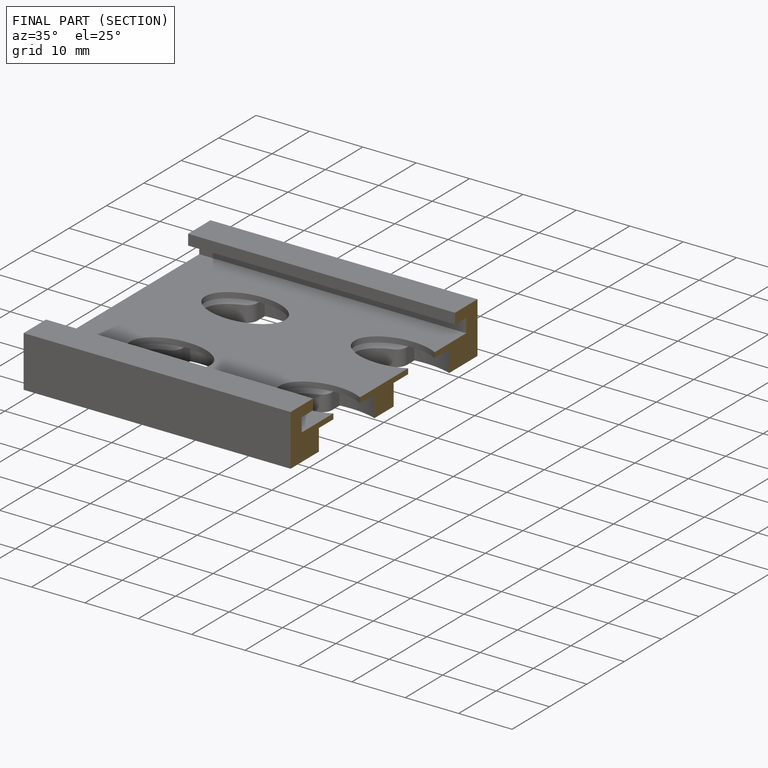
[diagram: finished part — half-section view (interior)]
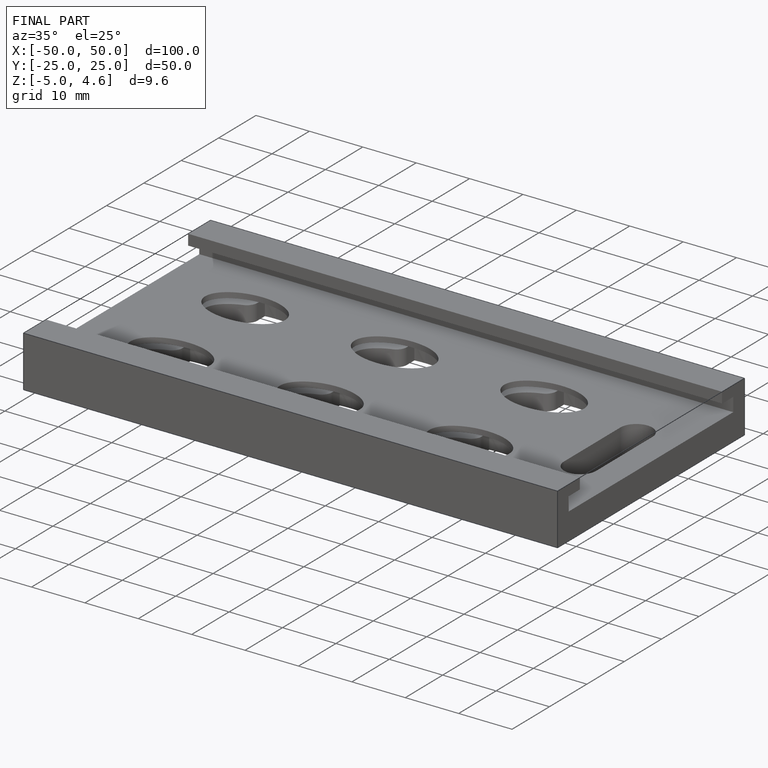
[diagram: finished part — iso view with bounding-box wireframe]
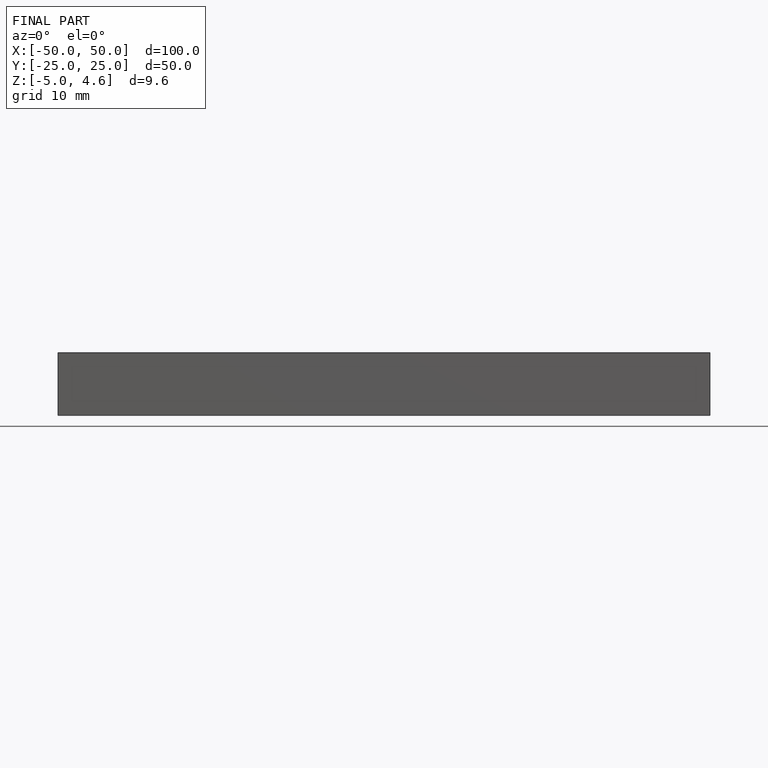
[diagram: finished part — front view with bounding-box wireframe]
